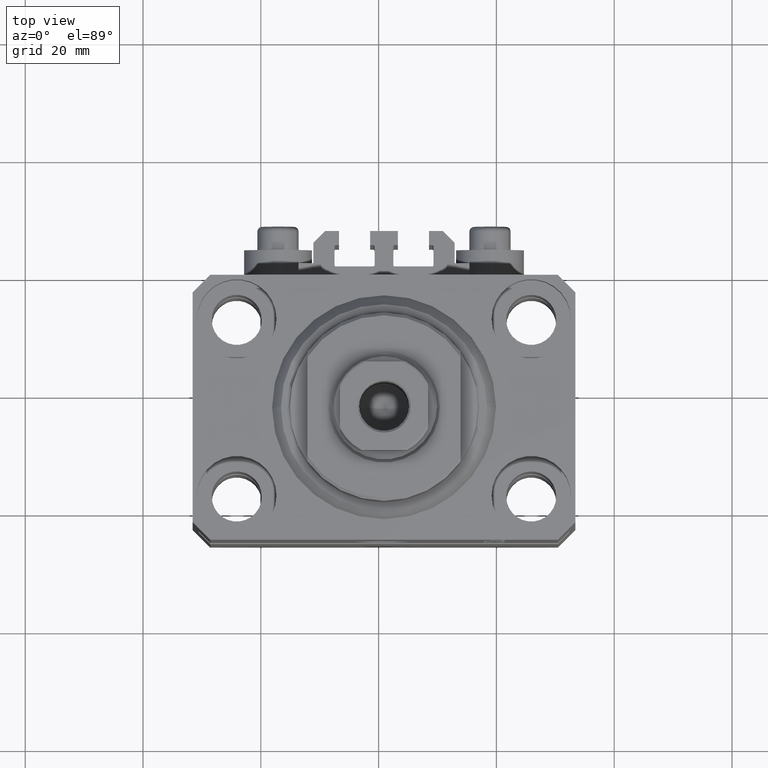
[diagram: clean part render]
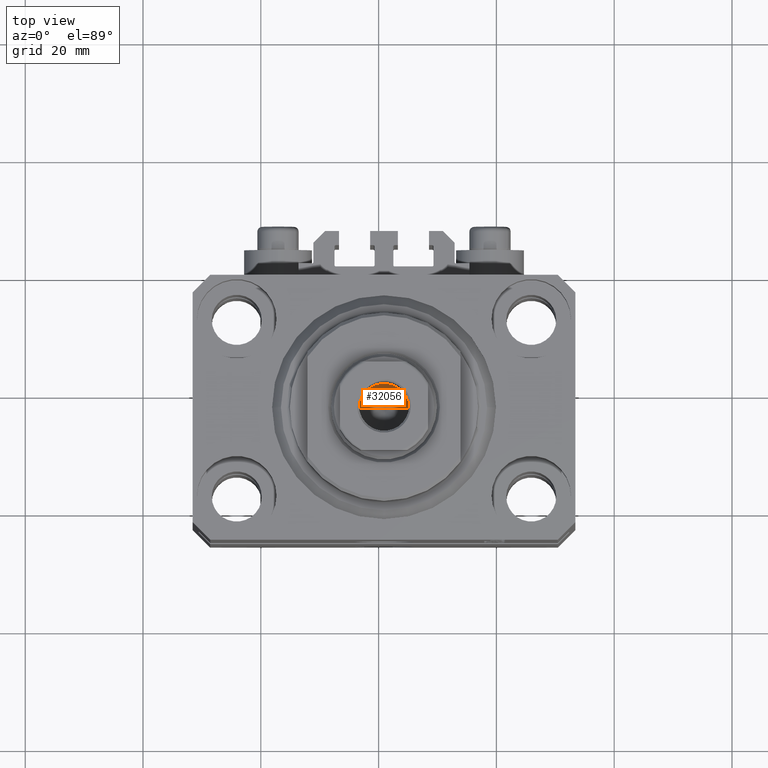
[diagram: same view with one face highlighted and labeled with its STEP entity id]
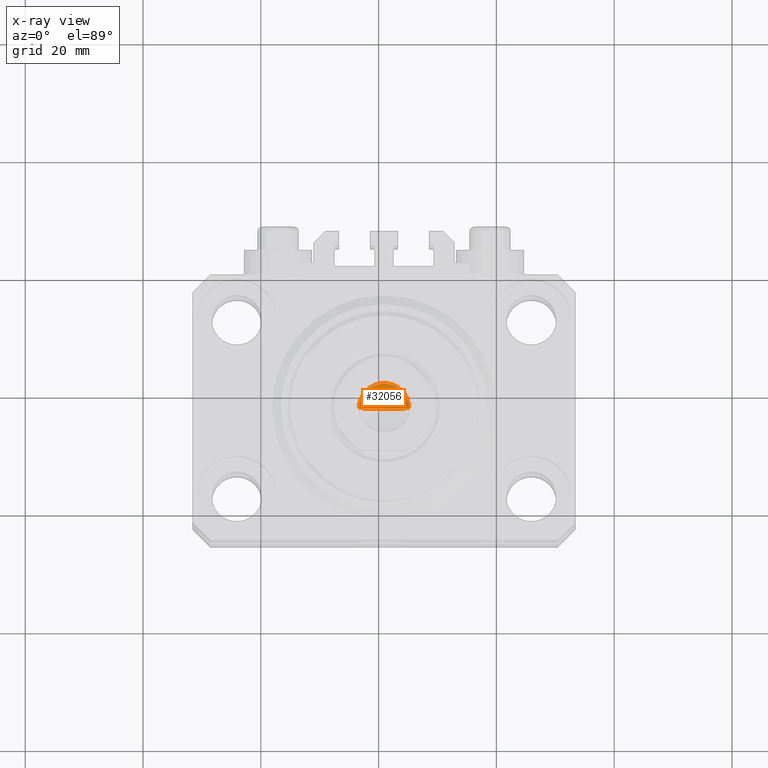
[diagram: x-ray of the same camera — body ghosted, the highlighted face saturated]
A machine part, top view. The second image highlights one B-rep face of the part: STEP entity #32056.
The next image is the same camera in x-ray: the body ghosted, the highlighted face saturated — about 0% of this face is hidden behind the body in this view.
In plain terms, the highlighted conical surface has half-angle 59 deg.
Its self-contained STEP definition (entity closure, byte-faithful):
#5673 = CONICAL_SURFACE ( 'NONE', #17794, 4.249999999999994671, 1.029744258676653423 ) ;
#7160 = CARTESIAN_POINT ( 'NONE',  ( -4.249999999999994671, 5.204748896376244783E-16, 59.10000000000000853 ) ) ;
#13327 = EDGE_LOOP ( 'NONE', ( #40116, #23153, #46050 ) ) ;
#14842 = CARTESIAN_POINT ( 'NONE',  ( 0.000000000000000000, 0.000000000000000000, 59.10000000000000853 ) ) ;
#17794 = AXIS2_PLACEMENT_3D ( 'NONE', #41577, #37763, #38478 ) ;
#18019 = DIRECTION ( 'NONE',  ( 0.8571673007021117785, 0.000000000000000000, 0.5150380749100550437 ) ) ;
#18724 = LINE ( 'NONE', #25644, #21351 ) ;
#19053 = VECTOR ( 'NONE', #28602, 1000.000000000000000 ) ;
#19143 = FACE_OUTER_BOUND ( 'NONE', #13327, .T. ) ;
#21044 = CARTESIAN_POINT ( 'NONE',  ( -4.249999999999994671, 5.204748896376244783E-16, 59.10000000000000853 ) ) ;
#21351 = VECTOR ( 'NONE', #18019, 1000.000000000000000 ) ;
#23153 = ORIENTED_EDGE ( 'NONE', *, *, #24612, .T. ) ;
#24612 = EDGE_CURVE ( 'NONE', #39597, #43526, #18724, .T. ) ;
#25644 = CARTESIAN_POINT ( 'NONE',  ( 4.249999999999994671, 0.000000000000000000, 59.10000000000000853 ) ) ;
#26003 = CARTESIAN_POINT ( 'NONE',  ( -6.748699724488696097E-15, 0.000000000000000000, 56.54634236913287992 ) ) ;
#28602 = DIRECTION ( 'NONE',  ( -0.8571673007021117785, 1.049727191138617956E-16, 0.5150380749100550437 ) ) ;
#29382 = DIRECTION ( 'NONE',  ( -0.000000000000000000, -0.000000000000000000, 1.000000000000000000 ) ) ;
#31014 = CARTESIAN_POINT ( 'NONE',  ( 4.249999999999994671, 0.000000000000000000, 59.10000000000000853 ) ) ;
#32056 = ADVANCED_FACE ( 'NONE', ( #19143 ), #5673, .F. ) ;
#33660 = EDGE_CURVE ( 'NONE', #43526, #39129, #40811, .T. ) ;
#37763 = DIRECTION ( 'NONE',  ( -0.000000000000000000, -0.000000000000000000, 1.000000000000000000 ) ) ;
#38478 = DIRECTION ( 'NONE',  ( 1.000000000000000000, 0.000000000000000000, 0.000000000000000000 ) ) ;
#39129 = VERTEX_POINT ( 'NONE', #21044 ) ;
#39597 = VERTEX_POINT ( 'NONE', #26003 ) ;
#39678 = DIRECTION ( 'NONE',  ( 1.000000000000000000, 0.000000000000000000, 0.000000000000000000 ) ) ;
#40116 = ORIENTED_EDGE ( 'NONE', *, *, #42936, .F. ) ;
#40811 = CIRCLE ( 'NONE', #45356, 4.249999999999994671 ) ;
#41577 = CARTESIAN_POINT ( 'NONE',  ( 0.000000000000000000, 0.000000000000000000, 59.10000000000000853 ) ) ;
#42936 = EDGE_CURVE ( 'NONE', #39597, #39129, #43167, .T. ) ;
#43167 = LINE ( 'NONE', #7160, #19053 ) ;
#43526 = VERTEX_POINT ( 'NONE', #31014 ) ;
#45356 = AXIS2_PLACEMENT_3D ( 'NONE', #14842, #29382, #39678 ) ;
#46050 = ORIENTED_EDGE ( 'NONE', *, *, #33660, .T. ) ;